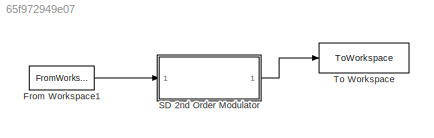
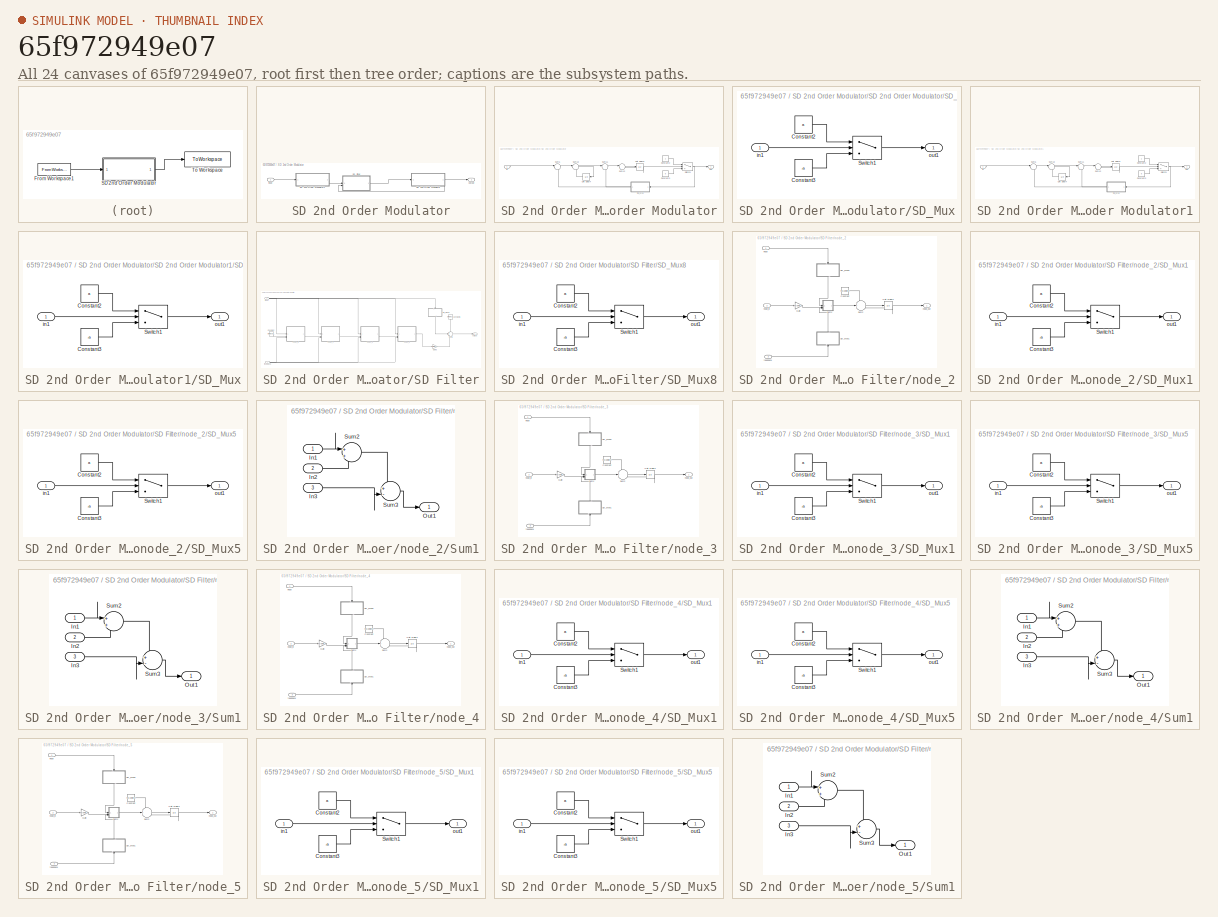
[diagram: thumbnail index - all 24 canvases of the model, root first then tree order]
MODEL slx_65f972949e07
KIND model
CONFIG AbsTol = auto
CONFIG EnableMultiTasking = off
CONFIG FixedStep = auto
CONFIG MaxStep = auto
CONFIG MinStep = auto
CONFIG RelTol = 1e-3
CONFIG SampleTimeConstraint = Unconstrained
CONFIG SolverName = VariableStepAuto
CONFIG StartTime = 0.0
CONFIG StopTime = 10.0
BLOCK [FromWorkspace] From Workspace1
  Interpolate = off
  OutputAfterFinalValue = Holding final value
  SampleTime = ts
  VariableName = simin
BLOCK [SubSystem] SD 2nd Order Modulator
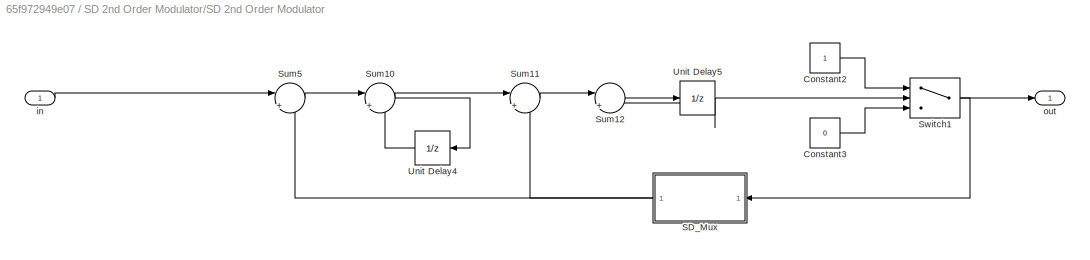
BLOCK [SubSystem] SD 2nd Order Modulator/SD 2nd Order Modulator
BLOCK [Constant] SD 2nd Order Modulator/SD 2nd Order Modulator/Constant2
  OutDataTypeStr = boolean
BLOCK [Constant] SD 2nd Order Modulator/SD 2nd Order Modulator/Constant3
  OutDataTypeStr = boolean
  Value = 0
BLOCK [SubSystem] SD 2nd Order Modulator/SD 2nd Order Modulator/SD_Mux
BLOCK [Constant] SD 2nd Order Modulator/SD 2nd Order Modulator/SD_Mux/Constant2
  Value = a
BLOCK [Constant] SD 2nd Order Modulator/SD 2nd Order Modulator/SD_Mux/Constant3
  Value = -a
BLOCK [Switch] SD 2nd Order Modulator/SD 2nd Order Modulator/SD_Mux/Switch1
  Criteria = u2 > Threshold
  InputSameDT = off
  SaturateOnIntegerOverflow = off
BLOCK [Inport] SD 2nd Order Modulator/SD 2nd Order Modulator/SD_Mux/in1
  OutDataTypeStr = boolean
  PortDimensions = 1
  SampleTime = 8.85770975056689e-08
BLOCK [Outport] SD 2nd Order Modulator/SD 2nd Order Modulator/SD_Mux/out1
  SampleTime = 8.85770975056689e-08
BLOCK [Sum] SD 2nd Order Modulator/SD 2nd Order Modulator/Sum10
  AccumDataTypeStr = Inherit: Same as first input
  Inputs = ||+|+
  OutDataTypeStr = Inherit: Same as accumulator
BLOCK [Sum] SD 2nd Order Modulator/SD 2nd Order Modulator/Sum11
  AccumDataTypeStr = Inherit: Same as first input
  Inputs = ||+|-
  OutDataTypeStr = Inherit: Same as accumulator
BLOCK [Sum] SD 2nd Order Modulator/SD 2nd Order Modulator/Sum12
  AccumDataTypeStr = Inherit: Same as first input
  Inputs = ||+|+
  OutDataTypeStr = Inherit: Same as accumulator
BLOCK [Sum] SD 2nd Order Modulator/SD 2nd Order Modulator/Sum5
  AccumDataTypeStr = Inherit: Same as first input
  Inputs = ||+|-
  OutDataTypeStr = Inherit: Same as accumulator
BLOCK [Switch] SD 2nd Order Modulator/SD 2nd Order Modulator/Switch1
  Criteria = u2 > Threshold
  InputSameDT = off
  SaturateOnIntegerOverflow = off
BLOCK [UnitDelay] SD 2nd Order Modulator/SD 2nd Order Modulator/Unit Delay4
  HasFrameUpgradeWarning = on
  SampleTime = -1
BLOCK [UnitDelay] SD 2nd Order Modulator/SD 2nd Order Modulator/Unit Delay5
  HasFrameUpgradeWarning = on
  SampleTime = -1
BLOCK [Inport] SD 2nd Order Modulator/SD 2nd Order Modulator/in
  OutDataTypeStr = fixdt(1, 47, 22)
  PortDimensions = 1
  SampleTime = 8.85770975056689e-08
BLOCK [Outport] SD 2nd Order Modulator/SD 2nd Order Modulator/out
  SampleTime = 8.85770975056689e-08
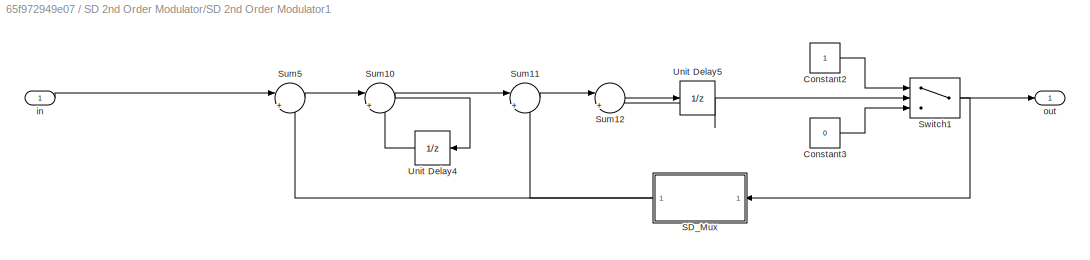
BLOCK [SubSystem] SD 2nd Order Modulator/SD 2nd Order Modulator1
BLOCK [Constant] SD 2nd Order Modulator/SD 2nd Order Modulator1/Constant2
  OutDataTypeStr = boolean
BLOCK [Constant] SD 2nd Order Modulator/SD 2nd Order Modulator1/Constant3
  OutDataTypeStr = boolean
  Value = 0
BLOCK [SubSystem] SD 2nd Order Modulator/SD 2nd Order Modulator1/SD_Mux
BLOCK [Constant] SD 2nd Order Modulator/SD 2nd Order Modulator1/SD_Mux/Constant2
  Value = a
BLOCK [Constant] SD 2nd Order Modulator/SD 2nd Order Modulator1/SD_Mux/Constant3
  Value = -a
BLOCK [Switch] SD 2nd Order Modulator/SD 2nd Order Modulator1/SD_Mux/Switch1
  Criteria = u2 > Threshold
  InputSameDT = off
  SaturateOnIntegerOverflow = off
BLOCK [Inport] SD 2nd Order Modulator/SD 2nd Order Modulator1/SD_Mux/in1
  OutDataTypeStr = boolean
  PortDimensions = 1
  SampleTime = 8.85770975056689e-08
BLOCK [Outport] SD 2nd Order Modulator/SD 2nd Order Modulator1/SD_Mux/out1
  SampleTime = 8.85770975056689e-08
BLOCK [Sum] SD 2nd Order Modulator/SD 2nd Order Modulator1/Sum10
  AccumDataTypeStr = Inherit: Same as first input
  Inputs = ||+|+
  OutDataTypeStr = Inherit: Same as accumulator
BLOCK [Sum] SD 2nd Order Modulator/SD 2nd Order Modulator1/Sum11
  AccumDataTypeStr = Inherit: Same as first input
  Inputs = ||+|-
  OutDataTypeStr = Inherit: Same as accumulator
BLOCK [Sum] SD 2nd Order Modulator/SD 2nd Order Modulator1/Sum12
  AccumDataTypeStr = Inherit: Same as first input
  Inputs = ||+|+
  OutDataTypeStr = Inherit: Same as accumulator
BLOCK [Sum] SD 2nd Order Modulator/SD 2nd Order Modulator1/Sum5
  AccumDataTypeStr = Inherit: Same as first input
  Inputs = ||+|-
  OutDataTypeStr = Inherit: Same as accumulator
BLOCK [Switch] SD 2nd Order Modulator/SD 2nd Order Modulator1/Switch1
  Criteria = u2 > Threshold
  InputSameDT = off
  SaturateOnIntegerOverflow = off
BLOCK [UnitDelay] SD 2nd Order Modulator/SD 2nd Order Modulator1/Unit Delay4
  HasFrameUpgradeWarning = on
  SampleTime = -1
BLOCK [UnitDelay] SD 2nd Order Modulator/SD 2nd Order Modulator1/Unit Delay5
  HasFrameUpgradeWarning = on
  SampleTime = -1
BLOCK [Inport] SD 2nd Order Modulator/SD 2nd Order Modulator1/in
  OutDataTypeStr = fixdt(1, 16, 7)
  PortDimensions = 1
  SampleTime = 8.85770975056689e-08
BLOCK [Outport] SD 2nd Order Modulator/SD 2nd Order Modulator1/out
  SampleTime = 8.85770975056689e-08
BLOCK [SubSystem] SD 2nd Order Modulator/SD Filter
BLOCK [Constant] SD 2nd Order Modulator/SD Filter/Constant
  Value = bitwidths(5).k_ts
BLOCK [Constant] SD 2nd Order Modulator/SD Filter/Constant1
  NameLocation = left
  Value = bitwidths(1).accum
BLOCK [Gain] SD 2nd Order Modulator/SD Filter/Gain3
  Gain = bitwidths(1).k_ts
  RndMeth = Round
BLOCK [SubSystem] SD 2nd Order Modulator/SD Filter/SD_Mux8
  NameLocation = right
BLOCK [Constant] SD 2nd Order Modulator/SD Filter/SD_Mux8/Constant2
  Value = a
BLOCK [Constant] SD 2nd Order Modulator/SD Filter/SD_Mux8/Constant3
  Value = -a
BLOCK [Switch] SD 2nd Order Modulator/SD Filter/SD_Mux8/Switch1
  Criteria = u2 > Threshold
  InputSameDT = off
  SaturateOnIntegerOverflow = off
BLOCK [Inport] SD 2nd Order Modulator/SD Filter/SD_Mux8/in1
  OutDataTypeStr = boolean
  PortDimensions = 1
  SampleTime = 8.85770975056689e-08
BLOCK [Outport] SD 2nd Order Modulator/SD Filter/SD_Mux8/out1
  SampleTime = 8.85770975056689e-08
BLOCK [Sum] SD 2nd Order Modulator/SD Filter/Sum8
  AccumDataTypeStr = Inherit: Same as first input
  Inputs = +++
  OutDataTypeStr = Inherit: Same as accumulator
BLOCK [Inport] SD 2nd Order Modulator/SD Filter/feedback
  OutDataTypeStr = boolean
  Port = 2
  PortDimensions = 1
  SampleTime = 8.85770975056689e-08
BLOCK [Inport] SD 2nd Order Modulator/SD Filter/input
  OutDataTypeStr = boolean
  PortDimensions = 1
  SampleTime = 8.85770975056689e-08
BLOCK [SubSystem] SD 2nd Order Modulator/SD Filter/node_2
BLOCK [Constant] SD 2nd Order Modulator/SD Filter/node_2/Constant
  Value = Parameter4
BLOCK [Gain] SD 2nd Order Modulator/SD Filter/node_2/Gain
  Gain = Parameter3
  RndMeth = Round
BLOCK [SubSystem] SD 2nd Order Modulator/SD Filter/node_2/SD_Mux1
  NameLocation = right
BLOCK [Constant] SD 2nd Order Modulator/SD Filter/node_2/SD_Mux1/Constant2
  Value = a
BLOCK [Constant] SD 2nd Order Modulator/SD Filter/node_2/SD_Mux1/Constant3
  Value = -a
BLOCK [Switch] SD 2nd Order Modulator/SD Filter/node_2/SD_Mux1/Switch1
  Criteria = u2 > Threshold
  InputSameDT = off
  SaturateOnIntegerOverflow = off
BLOCK [Inport] SD 2nd Order Modulator/SD Filter/node_2/SD_Mux1/in1
  OutDataTypeStr = boolean
  PortDimensions = 1
  SampleTime = 8.85770975056689e-08
BLOCK [Outport] SD 2nd Order Modulator/SD Filter/node_2/SD_Mux1/out1
  SampleTime = 8.85770975056689e-08
BLOCK [SubSystem] SD 2nd Order Modulator/SD Filter/node_2/SD_Mux5
  NameLocation = right
BLOCK [Constant] SD 2nd Order Modulator/SD Filter/node_2/SD_Mux5/Constant2
  Value = a
BLOCK [Constant] SD 2nd Order Modulator/SD Filter/node_2/SD_Mux5/Constant3
  Value = -a
BLOCK [Switch] SD 2nd Order Modulator/SD Filter/node_2/SD_Mux5/Switch1
  Criteria = u2 > Threshold
  InputSameDT = off
  SaturateOnIntegerOverflow = off
BLOCK [Inport] SD 2nd Order Modulator/SD Filter/node_2/SD_Mux5/in1
  OutDataTypeStr = boolean
  PortDimensions = 1
  SampleTime = 8.85770975056689e-08
BLOCK [Outport] SD 2nd Order Modulator/SD Filter/node_2/SD_Mux5/out1
  SampleTime = 8.85770975056689e-08
BLOCK [SubSystem] SD 2nd Order Modulator/SD Filter/node_2/Sum1
BLOCK [Inport] SD 2nd Order Modulator/SD Filter/node_2/Sum1/In1
  OutDataTypeStr = fixdt(1,21,8)
BLOCK [Inport] SD 2nd Order Modulator/SD Filter/node_2/Sum1/In2
  OutDataTypeStr = fixdt(1,66,50)
  Port = 2
BLOCK [Inport] SD 2nd Order Modulator/SD Filter/node_2/Sum1/In3
  OutDataTypeStr = fixdt(1,21,8)
  Port = 3
BLOCK [Outport] SD 2nd Order Modulator/SD Filter/node_2/Sum1/Out1
BLOCK [Sum] SD 2nd Order Modulator/SD Filter/node_2/Sum1/Sum2
  AccumDataTypeStr = fixdt(1,21,8)
  OutDataTypeStr = fixdt(1,21,8)
BLOCK [Sum] SD 2nd Order Modulator/SD Filter/node_2/Sum1/Sum3
  AccumDataTypeStr = fixdt(1,21,8)
  Inputs = +-
  OutDataTypeStr = fixdt(1,21,8)
BLOCK [Sum] SD 2nd Order Modulator/SD Filter/node_2/Sum2
  AccumDataTypeStr = Inherit: Same as first input
  Inputs = +++
  OutDataTypeStr = Inherit: Same as accumulator
BLOCK [UnitDelay] SD 2nd Order Modulator/SD Filter/node_2/Unit Delay1
  HasFrameUpgradeWarning = on
  SampleTime = -1
BLOCK [Inport] SD 2nd Order Modulator/SD Filter/node_2/feedback
  OutDataTypeStr = boolean
  Port = 3
  PortDimensions = 1
  SampleTime = 8.85770975056689e-08
BLOCK [Inport] SD 2nd Order Modulator/SD Filter/node_2/input
  OutDataTypeStr = boolean
  PortDimensions = 1
  SampleTime = 8.85770975056689e-08
BLOCK [Inport] SD 2nd Order Modulator/SD Filter/node_2/node_in
  OutDataTypeStr = fixdt(1, 33, 8)
  Port = 2
  PortDimensions = 1
  SampleTime = 8.85770975056689e-08
BLOCK [Outport] SD 2nd Order Modulator/SD Filter/node_2/node_out
  SampleTime = 8.85770975056689e-08
BLOCK [SubSystem] SD 2nd Order Modulator/SD Filter/node_3
BLOCK [Constant] SD 2nd Order Modulator/SD Filter/node_3/Constant
  Value = Parameter4
BLOCK [Gain] SD 2nd Order Modulator/SD Filter/node_3/Gain
  Gain = Parameter3
  RndMeth = Round
BLOCK [SubSystem] SD 2nd Order Modulator/SD Filter/node_3/SD_Mux1
  NameLocation = right
BLOCK [Constant] SD 2nd Order Modulator/SD Filter/node_3/SD_Mux1/Constant2
  Value = a
BLOCK [Constant] SD 2nd Order Modulator/SD Filter/node_3/SD_Mux1/Constant3
  Value = -a
BLOCK [Switch] SD 2nd Order Modulator/SD Filter/node_3/SD_Mux1/Switch1
  Criteria = u2 > Threshold
  InputSameDT = off
  SaturateOnIntegerOverflow = off
BLOCK [Inport] SD 2nd Order Modulator/SD Filter/node_3/SD_Mux1/in1
  OutDataTypeStr = boolean
  PortDimensions = 1
  SampleTime = 8.85770975056689e-08
BLOCK [Outport] SD 2nd Order Modulator/SD Filter/node_3/SD_Mux1/out1
  SampleTime = 8.85770975056689e-08
BLOCK [SubSystem] SD 2nd Order Modulator/SD Filter/node_3/SD_Mux5
  NameLocation = right
BLOCK [Constant] SD 2nd Order Modulator/SD Filter/node_3/SD_Mux5/Constant2
  Value = a
BLOCK [Constant] SD 2nd Order Modulator/SD Filter/node_3/SD_Mux5/Constant3
  Value = -a
BLOCK [Switch] SD 2nd Order Modulator/SD Filter/node_3/SD_Mux5/Switch1
  Criteria = u2 > Threshold
  InputSameDT = off
  SaturateOnIntegerOverflow = off
BLOCK [Inport] SD 2nd Order Modulator/SD Filter/node_3/SD_Mux5/in1
  OutDataTypeStr = boolean
  PortDimensions = 1
  SampleTime = 8.85770975056689e-08
BLOCK [Outport] SD 2nd Order Modulator/SD Filter/node_3/SD_Mux5/out1
  SampleTime = 8.85770975056689e-08
BLOCK [SubSystem] SD 2nd Order Modulator/SD Filter/node_3/Sum1
BLOCK [Inport] SD 2nd Order Modulator/SD Filter/node_3/Sum1/In1
  OutDataTypeStr = fixdt(1,25,8)
BLOCK [Inport] SD 2nd Order Modulator/SD Filter/node_3/Sum1/In2
  OutDataTypeStr = fixdt(1,66,50)
  Port = 2
BLOCK [Inport] SD 2nd Order Modulator/SD Filter/node_3/Sum1/In3
  OutDataTypeStr = fixdt(1,25,8)
  Port = 3
BLOCK [Outport] SD 2nd Order Modulator/SD Filter/node_3/Sum1/Out1
BLOCK [Sum] SD 2nd Order Modulator/SD Filter/node_3/Sum1/Sum2
  AccumDataTypeStr = fixdt(1,25,8)
  OutDataTypeStr = fixdt(1,25,8)
BLOCK [Sum] SD 2nd Order Modulator/SD Filter/node_3/Sum1/Sum3
  AccumDataTypeStr = fixdt(1,25,8)
  Inputs = +-
  OutDataTypeStr = fixdt(1,25,8)
BLOCK [Sum] SD 2nd Order Modulator/SD Filter/node_3/Sum2
  AccumDataTypeStr = Inherit: Same as first input
  Inputs = +++
  OutDataTypeStr = Inherit: Same as accumulator
BLOCK [UnitDelay] SD 2nd Order Modulator/SD Filter/node_3/Unit Delay1
  HasFrameUpgradeWarning = on
  SampleTime = -1
BLOCK [Inport] SD 2nd Order Modulator/SD Filter/node_3/feedback
  OutDataTypeStr = boolean
  Port = 3
  PortDimensions = 1
  SampleTime = 8.85770975056689e-08
BLOCK [Inport] SD 2nd Order Modulator/SD Filter/node_3/input
  OutDataTypeStr = boolean
  PortDimensions = 1
  SampleTime = 8.85770975056689e-08
BLOCK [Inport] SD 2nd Order Modulator/SD Filter/node_3/node_in
  OutDataTypeStr = fixdt(1, 33, 8)
  Port = 2
  PortDimensions = 1
  SampleTime = 8.85770975056689e-08
BLOCK [Outport] SD 2nd Order Modulator/SD Filter/node_3/node_out
  SampleTime = 8.85770975056689e-08
BLOCK [SubSystem] SD 2nd Order Modulator/SD Filter/node_4
BLOCK [Constant] SD 2nd Order Modulator/SD Filter/node_4/Constant
  Value = Parameter4
BLOCK [Gain] SD 2nd Order Modulator/SD Filter/node_4/Gain
  Gain = Parameter3
  RndMeth = Round
BLOCK [SubSystem] SD 2nd Order Modulator/SD Filter/node_4/SD_Mux1
  NameLocation = right
BLOCK [Constant] SD 2nd Order Modulator/SD Filter/node_4/SD_Mux1/Constant2
  Value = a
BLOCK [Constant] SD 2nd Order Modulator/SD Filter/node_4/SD_Mux1/Constant3
  Value = -a
BLOCK [Switch] SD 2nd Order Modulator/SD Filter/node_4/SD_Mux1/Switch1
  Criteria = u2 > Threshold
  InputSameDT = off
  SaturateOnIntegerOverflow = off
BLOCK [Inport] SD 2nd Order Modulator/SD Filter/node_4/SD_Mux1/in1
  OutDataTypeStr = boolean
  PortDimensions = 1
  SampleTime = 8.85770975056689e-08
BLOCK [Outport] SD 2nd Order Modulator/SD Filter/node_4/SD_Mux1/out1
  SampleTime = 8.85770975056689e-08
BLOCK [SubSystem] SD 2nd Order Modulator/SD Filter/node_4/SD_Mux5
  NameLocation = right
BLOCK [Constant] SD 2nd Order Modulator/SD Filter/node_4/SD_Mux5/Constant2
  Value = a
BLOCK [Constant] SD 2nd Order Modulator/SD Filter/node_4/SD_Mux5/Constant3
  Value = -a
BLOCK [Switch] SD 2nd Order Modulator/SD Filter/node_4/SD_Mux5/Switch1
  Criteria = u2 > Threshold
  InputSameDT = off
  SaturateOnIntegerOverflow = off
BLOCK [Inport] SD 2nd Order Modulator/SD Filter/node_4/SD_Mux5/in1
  OutDataTypeStr = boolean
  PortDimensions = 1
  SampleTime = 8.85770975056689e-08
BLOCK [Outport] SD 2nd Order Modulator/SD Filter/node_4/SD_Mux5/out1
  SampleTime = 8.85770975056689e-08
BLOCK [SubSystem] SD 2nd Order Modulator/SD Filter/node_4/Sum1
BLOCK [Inport] SD 2nd Order Modulator/SD Filter/node_4/Sum1/In1
  OutDataTypeStr = fixdt(1,21,8)
BLOCK [Inport] SD 2nd Order Modulator/SD Filter/node_4/Sum1/In2
  OutDataTypeStr = fixdt(1,50,34)
  Port = 2
BLOCK [Inport] SD 2nd Order Modulator/SD Filter/node_4/Sum1/In3
  OutDataTypeStr = fixdt(1,21,8)
  Port = 3
BLOCK [Outport] SD 2nd Order Modulator/SD Filter/node_4/Sum1/Out1
BLOCK [Sum] SD 2nd Order Modulator/SD Filter/node_4/Sum1/Sum2
  AccumDataTypeStr = fixdt(1,21,8)
  OutDataTypeStr = fixdt(1,21,8)
BLOCK [Sum] SD 2nd Order Modulator/SD Filter/node_4/Sum1/Sum3
  AccumDataTypeStr = fixdt(1,21,8)
  Inputs = +-
  OutDataTypeStr = fixdt(1,21,8)
BLOCK [Sum] SD 2nd Order Modulator/SD Filter/node_4/Sum2
  AccumDataTypeStr = Inherit: Same as first input
  Inputs = +++
  OutDataTypeStr = Inherit: Same as accumulator
BLOCK [UnitDelay] SD 2nd Order Modulator/SD Filter/node_4/Unit Delay1
  HasFrameUpgradeWarning = on
  SampleTime = -1
BLOCK [Inport] SD 2nd Order Modulator/SD Filter/node_4/feedback
  OutDataTypeStr = boolean
  Port = 3
  PortDimensions = 1
  SampleTime = 8.85770975056689e-08
BLOCK [Inport] SD 2nd Order Modulator/SD Filter/node_4/input
  OutDataTypeStr = boolean
  PortDimensions = 1
  SampleTime = 8.85770975056689e-08
BLOCK [Inport] SD 2nd Order Modulator/SD Filter/node_4/node_in
  OutDataTypeStr = fixdt(1, 25, 0)
  Port = 2
  PortDimensions = 1
  SampleTime = 8.85770975056689e-08
BLOCK [Outport] SD 2nd Order Modulator/SD Filter/node_4/node_out
  SampleTime = 8.85770975056689e-08
BLOCK [SubSystem] SD 2nd Order Modulator/SD Filter/node_5
BLOCK [Constant] SD 2nd Order Modulator/SD Filter/node_5/Constant
  Value = Parameter4
BLOCK [Gain] SD 2nd Order Modulator/SD Filter/node_5/Gain
  Gain = Parameter3
  RndMeth = Round
BLOCK [SubSystem] SD 2nd Order Modulator/SD Filter/node_5/SD_Mux1
  NameLocation = right
BLOCK [Constant] SD 2nd Order Modulator/SD Filter/node_5/SD_Mux1/Constant2
  Value = a
BLOCK [Constant] SD 2nd Order Modulator/SD Filter/node_5/SD_Mux1/Constant3
  Value = -a
BLOCK [Switch] SD 2nd Order Modulator/SD Filter/node_5/SD_Mux1/Switch1
  Criteria = u2 > Threshold
  InputSameDT = off
  SaturateOnIntegerOverflow = off
BLOCK [Inport] SD 2nd Order Modulator/SD Filter/node_5/SD_Mux1/in1
  OutDataTypeStr = boolean
  PortDimensions = 1
  SampleTime = 8.85770975056689e-08
BLOCK [Outport] SD 2nd Order Modulator/SD Filter/node_5/SD_Mux1/out1
  SampleTime = 8.85770975056689e-08
BLOCK [SubSystem] SD 2nd Order Modulator/SD Filter/node_5/SD_Mux5
  NameLocation = right
BLOCK [Constant] SD 2nd Order Modulator/SD Filter/node_5/SD_Mux5/Constant2
  Value = a
BLOCK [Constant] SD 2nd Order Modulator/SD Filter/node_5/SD_Mux5/Constant3
  Value = -a
BLOCK [Switch] SD 2nd Order Modulator/SD Filter/node_5/SD_Mux5/Switch1
  Criteria = u2 > Threshold
  InputSameDT = off
  SaturateOnIntegerOverflow = off
BLOCK [Inport] SD 2nd Order Modulator/SD Filter/node_5/SD_Mux5/in1
  OutDataTypeStr = boolean
  PortDimensions = 1
  SampleTime = 8.85770975056689e-08
BLOCK [Outport] SD 2nd Order Modulator/SD Filter/node_5/SD_Mux5/out1
  SampleTime = 8.85770975056689e-08
BLOCK [SubSystem] SD 2nd Order Modulator/SD Filter/node_5/Sum1
BLOCK [Inport] SD 2nd Order Modulator/SD Filter/node_5/Sum1/In1
  OutDataTypeStr = fixdt(1,16,0)
BLOCK [Inport] SD 2nd Order Modulator/SD Filter/node_5/Sum1/In2
  OutDataTypeStr = fixdt(1,8,1001)
  Port = 2
BLOCK [Inport] SD 2nd Order Modulator/SD Filter/node_5/Sum1/In3
  OutDataTypeStr = fixdt(1,16,0)
  Port = 3
BLOCK [Outport] SD 2nd Order Modulator/SD Filter/node_5/Sum1/Out1
BLOCK [Sum] SD 2nd Order Modulator/SD Filter/node_5/Sum1/Sum2
  AccumDataTypeStr = fixdt(1,16,0)
  OutDataTypeStr = fixdt(1,16,0)
BLOCK [Sum] SD 2nd Order Modulator/SD Filter/node_5/Sum1/Sum3
  AccumDataTypeStr = fixdt(1,16,0)
  Inputs = +-
  OutDataTypeStr = fixdt(1,16,0)
BLOCK [Sum] SD 2nd Order Modulator/SD Filter/node_5/Sum2
  AccumDataTypeStr = Inherit: Same as first input
  Inputs = +++
  OutDataTypeStr = Inherit: Same as accumulator
BLOCK [UnitDelay] SD 2nd Order Modulator/SD Filter/node_5/Unit Delay1
  HasFrameUpgradeWarning = on
  SampleTime = -1
BLOCK [Inport] SD 2nd Order Modulator/SD Filter/node_5/feedback
  OutDataTypeStr = boolean
  Port = 3
  PortDimensions = 1
  SampleTime = 8.85770975056689e-08
BLOCK [Inport] SD 2nd Order Modulator/SD Filter/node_5/input
  OutDataTypeStr = boolean
  PortDimensions = 1
  SampleTime = 8.85770975056689e-08
BLOCK [Inport] SD 2nd Order Modulator/SD Filter/node_5/node_in
  OutDataTypeStr = fixdt(1, 2, 1)
  Port = 2
  PortDimensions = 1
BLOCK [Outport] SD 2nd Order Modulator/SD Filter/node_5/node_out
  SampleTime = 8.85770975056689e-08
BLOCK [Outport] SD 2nd Order Modulator/SD Filter/output
  SampleTime = 8.85770975056689e-08
BLOCK [Inport] SD 2nd Order Modulator/input
  OutDataTypeStr = fixdt(1, 16, 7)
  PortDimensions = 1
  SampleTime = 8.85770975056689e-08
BLOCK [Outport] SD 2nd Order Modulator/output
  SampleTime = 8.85770975056689e-08
BLOCK [ToWorkspace] To Workspace
  MaxDataPoints = inf
  SampleTime = -1
  SaveFormat = Structure With Time
  VariableName = filter_output
LINE From Workspace1:1 -> SD 2nd Order Modulator:1
LINE SD 2nd Order Modulator/SD 2nd Order Modulator/Constant2:1 -> SD 2nd Order Modulator/SD 2nd Order Modulator/Switch1:1
LINE SD 2nd Order Modulator/SD 2nd Order Modulator/Constant3:1 -> SD 2nd Order Modulator/SD 2nd Order Modulator/Switch1:3
LINE SD 2nd Order Modulator/SD 2nd Order Modulator/SD_Mux/Constant2:1 -> SD 2nd Order Modulator/SD 2nd Order Modulator/SD_Mux/Switch1:1
LINE SD 2nd Order Modulator/SD 2nd Order Modulator/SD_Mux/Constant3:1 -> SD 2nd Order Modulator/SD 2nd Order Modulator/SD_Mux/Switch1:3
LINE SD 2nd Order Modulator/SD 2nd Order Modulator/SD_Mux/Switch1:1 -> SD 2nd Order Modulator/SD 2nd Order Modulator/SD_Mux/out1:1
LINE SD 2nd Order Modulator/SD 2nd Order Modulator/SD_Mux/in1:1 -> SD 2nd Order Modulator/SD 2nd Order Modulator/SD_Mux/Switch1:2
NET SD 2nd Order Modulator/SD 2nd Order Modulator/SD_Mux:1 -> SD 2nd Order Modulator/SD 2nd Order Modulator/Sum11:2, SD 2nd Order Modulator/SD 2nd Order Modulator/Sum5:2
NET SD 2nd Order Modulator/SD 2nd Order Modulator/Sum10:1 -> SD 2nd Order Modulator/SD 2nd Order Modulator/Sum11:1, SD 2nd Order Modulator/SD 2nd Order Modulator/Unit Delay4:1
LINE SD 2nd Order Modulator/SD 2nd Order Modulator/Sum11:1 -> SD 2nd Order Modulator/SD 2nd Order Modulator/Sum12:1
LINE SD 2nd Order Modulator/SD 2nd Order Modulator/Sum12:1 -> SD 2nd Order Modulator/SD 2nd Order Modulator/Unit Delay5:1
LINE SD 2nd Order Modulator/SD 2nd Order Modulator/Sum5:1 -> SD 2nd Order Modulator/SD 2nd Order Modulator/Sum10:1
NET SD 2nd Order Modulator/SD 2nd Order Modulator/Switch1:1 -> SD 2nd Order Modulator/SD 2nd Order Modulator/SD_Mux:1, SD 2nd Order Modulator/SD 2nd Order Modulator/out:1
LINE SD 2nd Order Modulator/SD 2nd Order Modulator/Unit Delay4:1 -> SD 2nd Order Modulator/SD 2nd Order Modulator/Sum10:2
NET SD 2nd Order Modulator/SD 2nd Order Modulator/Unit Delay5:1 -> SD 2nd Order Modulator/SD 2nd Order Modulator/Sum12:2, SD 2nd Order Modulator/SD 2nd Order Modulator/Switch1:2
LINE SD 2nd Order Modulator/SD 2nd Order Modulator/in:1 -> SD 2nd Order Modulator/SD 2nd Order Modulator/Sum5:1
LINE SD 2nd Order Modulator/SD 2nd Order Modulator1/Constant2:1 -> SD 2nd Order Modulator/SD 2nd Order Modulator1/Switch1:1
LINE SD 2nd Order Modulator/SD 2nd Order Modulator1/Constant3:1 -> SD 2nd Order Modulator/SD 2nd Order Modulator1/Switch1:3
LINE SD 2nd Order Modulator/SD 2nd Order Modulator1/SD_Mux/Constant2:1 -> SD 2nd Order Modulator/SD 2nd Order Modulator1/SD_Mux/Switch1:1
LINE SD 2nd Order Modulator/SD 2nd Order Modulator1/SD_Mux/Constant3:1 -> SD 2nd Order Modulator/SD 2nd Order Modulator1/SD_Mux/Switch1:3
LINE SD 2nd Order Modulator/SD 2nd Order Modulator1/SD_Mux/Switch1:1 -> SD 2nd Order Modulator/SD 2nd Order Modulator1/SD_Mux/out1:1
LINE SD 2nd Order Modulator/SD 2nd Order Modulator1/SD_Mux/in1:1 -> SD 2nd Order Modulator/SD 2nd Order Modulator1/SD_Mux/Switch1:2
NET SD 2nd Order Modulator/SD 2nd Order Modulator1/SD_Mux:1 -> SD 2nd Order Modulator/SD 2nd Order Modulator1/Sum11:2, SD 2nd Order Modulator/SD 2nd Order Modulator1/Sum5:2
NET SD 2nd Order Modulator/SD 2nd Order Modulator1/Sum10:1 -> SD 2nd Order Modulator/SD 2nd Order Modulator1/Sum11:1, SD 2nd Order Modulator/SD 2nd Order Modulator1/Unit Delay4:1
LINE SD 2nd Order Modulator/SD 2nd Order Modulator1/Sum11:1 -> SD 2nd Order Modulator/SD 2nd Order Modulator1/Sum12:1
LINE SD 2nd Order Modulator/SD 2nd Order Modulator1/Sum12:1 -> SD 2nd Order Modulator/SD 2nd Order Modulator1/Unit Delay5:1
LINE SD 2nd Order Modulator/SD 2nd Order Modulator1/Sum5:1 -> SD 2nd Order Modulator/SD 2nd Order Modulator1/Sum10:1
NET SD 2nd Order Modulator/SD 2nd Order Modulator1/Switch1:1 -> SD 2nd Order Modulator/SD 2nd Order Modulator1/SD_Mux:1, SD 2nd Order Modulator/SD 2nd Order Modulator1/out:1
LINE SD 2nd Order Modulator/SD 2nd Order Modulator1/Unit Delay4:1 -> SD 2nd Order Modulator/SD 2nd Order Modulator1/Sum10:2
NET SD 2nd Order Modulator/SD 2nd Order Modulator1/Unit Delay5:1 -> SD 2nd Order Modulator/SD 2nd Order Modulator1/Sum12:2, SD 2nd Order Modulator/SD 2nd Order Modulator1/Switch1:2
LINE SD 2nd Order Modulator/SD 2nd Order Modulator1/in:1 -> SD 2nd Order Modulator/SD 2nd Order Modulator1/Sum5:1
LINE SD 2nd Order Modulator/SD 2nd Order Modulator1:1 -> SD 2nd Order Modulator/SD Filter:1
NET SD 2nd Order Modulator/SD 2nd Order Modulator:1 -> SD 2nd Order Modulator/SD Filter:2, SD 2nd Order Modulator/output:1
LINE SD 2nd Order Modulator/SD Filter/Constant1:1 -> SD 2nd Order Modulator/SD Filter/Sum8:1
LINE SD 2nd Order Modulator/SD Filter/Constant:1 -> SD 2nd Order Modulator/SD Filter/node_5:2
LINE SD 2nd Order Modulator/SD Filter/Gain3:1 -> SD 2nd Order Modulator/SD Filter/Sum8:3
LINE SD 2nd Order Modulator/SD Filter/SD_Mux8/Constant2:1 -> SD 2nd Order Modulator/SD Filter/SD_Mux8/Switch1:1
LINE SD 2nd Order Modulator/SD Filter/SD_Mux8/Constant3:1 -> SD 2nd Order Modulator/SD Filter/SD_Mux8/Switch1:3
LINE SD 2nd Order Modulator/SD Filter/SD_Mux8/Switch1:1 -> SD 2nd Order Modulator/SD Filter/SD_Mux8/out1:1
LINE SD 2nd Order Modulator/SD Filter/SD_Mux8/in1:1 -> SD 2nd Order Modulator/SD Filter/SD_Mux8/Switch1:2
LINE SD 2nd Order Modulator/SD Filter/SD_Mux8:1 -> SD 2nd Order Modulator/SD Filter/Sum8:2
LINE SD 2nd Order Modulator/SD Filter/Sum8:1 -> SD 2nd Order Modulator/SD Filter/output:1
NET SD 2nd Order Modulator/SD Filter/feedback:1 -> SD 2nd Order Modulator/SD Filter/node_2:3, SD 2nd Order Modulator/SD Filter/node_3:3, SD 2nd Order Modulator/SD Filter/node_4:3, SD 2nd Order Modulator/SD Filter/node_5:3
NET SD 2nd Order Modulator/SD Filter/input:1 -> SD 2nd Order Modulator/SD Filter/SD_Mux8:1, SD 2nd Order Modulator/SD Filter/node_2:1, SD 2nd Order Modulator/SD Filter/node_3:1, SD 2nd Order Modulator/SD Filter/node_4:1, SD 2nd Order Modulator/SD Filter/node_5:1
LINE SD 2nd Order Modulator/SD Filter/node_2/Constant:1 -> SD 2nd Order Modulator/SD Filter/node_2/Sum2:1
LINE SD 2nd Order Modulator/SD Filter/node_2/Gain:1 -> SD 2nd Order Modulator/SD Filter/node_2/Sum1:2
LINE SD 2nd Order Modulator/SD Filter/node_2/SD_Mux1/Constant2:1 -> SD 2nd Order Modulator/SD Filter/node_2/SD_Mux1/Switch1:1
LINE SD 2nd Order Modulator/SD Filter/node_2/SD_Mux1/Constant3:1 -> SD 2nd Order Modulator/SD Filter/node_2/SD_Mux1/Switch1:3
LINE SD 2nd Order Modulator/SD Filter/node_2/SD_Mux1/Switch1:1 -> SD 2nd Order Modulator/SD Filter/node_2/SD_Mux1/out1:1
LINE SD 2nd Order Modulator/SD Filter/node_2/SD_Mux1/in1:1 -> SD 2nd Order Modulator/SD Filter/node_2/SD_Mux1/Switch1:2
LINE SD 2nd Order Modulator/SD Filter/node_2/SD_Mux1:1 -> SD 2nd Order Modulator/SD Filter/node_2/Sum1:3
LINE SD 2nd Order Modulator/SD Filter/node_2/SD_Mux5/Constant2:1 -> SD 2nd Order Modulator/SD Filter/node_2/SD_Mux5/Switch1:1
LINE SD 2nd Order Modulator/SD Filter/node_2/SD_Mux5/Constant3:1 -> SD 2nd Order Modulator/SD Filter/node_2/SD_Mux5/Switch1:3
LINE SD 2nd Order Modulator/SD Filter/node_2/SD_Mux5/Switch1:1 -> SD 2nd Order Modulator/SD Filter/node_2/SD_Mux5/out1:1
LINE SD 2nd Order Modulator/SD Filter/node_2/SD_Mux5/in1:1 -> SD 2nd Order Modulator/SD Filter/node_2/SD_Mux5/Switch1:2
LINE SD 2nd Order Modulator/SD Filter/node_2/SD_Mux5:1 -> SD 2nd Order Modulator/SD Filter/node_2/Sum1:1
LINE SD 2nd Order Modulator/SD Filter/node_2/Sum1/In1:1 -> SD 2nd Order Modulator/SD Filter/node_2/Sum1/Sum2:1
LINE SD 2nd Order Modulator/SD Filter/node_2/Sum1/In2:1 -> SD 2nd Order Modulator/SD Filter/node_2/Sum1/Sum2:2
LINE SD 2nd Order Modulator/SD Filter/node_2/Sum1/In3:1 -> SD 2nd Order Modulator/SD Filter/node_2/Sum1/Sum3:2
LINE SD 2nd Order Modulator/SD Filter/node_2/Sum1/Sum2:1 -> SD 2nd Order Modulator/SD Filter/node_2/Sum1/Sum3:1
LINE SD 2nd Order Modulator/SD Filter/node_2/Sum1/Sum3:1 -> SD 2nd Order Modulator/SD Filter/node_2/Sum1/Out1:1
LINE SD 2nd Order Modulator/SD Filter/node_2/Sum1:1 -> SD 2nd Order Modulator/SD Filter/node_2/Sum2:2
LINE SD 2nd Order Modulator/SD Filter/node_2/Sum2:1 -> SD 2nd Order Modulator/SD Filter/node_2/Unit Delay1:1
NET SD 2nd Order Modulator/SD Filter/node_2/Unit Delay1:1 -> SD 2nd Order Modulator/SD Filter/node_2/Sum2:3, SD 2nd Order Modulator/SD Filter/node_2/node_out:1
LINE SD 2nd Order Modulator/SD Filter/node_2/feedback:1 -> SD 2nd Order Modulator/SD Filter/node_2/SD_Mux1:1
LINE SD 2nd Order Modulator/SD Filter/node_2/input:1 -> SD 2nd Order Modulator/SD Filter/node_2/SD_Mux5:1
LINE SD 2nd Order Modulator/SD Filter/node_2/node_in:1 -> SD 2nd Order Modulator/SD Filter/node_2/Gain:1
LINE SD 2nd Order Modulator/SD Filter/node_2:1 -> SD 2nd Order Modulator/SD Filter/Gain3:1
LINE SD 2nd Order Modulator/SD Filter/node_3/Constant:1 -> SD 2nd Order Modulator/SD Filter/node_3/Sum2:1
LINE SD 2nd Order Modulator/SD Filter/node_3/Gain:1 -> SD 2nd Order Modulator/SD Filter/node_3/Sum1:2
LINE SD 2nd Order Modulator/SD Filter/node_3/SD_Mux1/Constant2:1 -> SD 2nd Order Modulator/SD Filter/node_3/SD_Mux1/Switch1:1
LINE SD 2nd Order Modulator/SD Filter/node_3/SD_Mux1/Constant3:1 -> SD 2nd Order Modulator/SD Filter/node_3/SD_Mux1/Switch1:3
LINE SD 2nd Order Modulator/SD Filter/node_3/SD_Mux1/Switch1:1 -> SD 2nd Order Modulator/SD Filter/node_3/SD_Mux1/out1:1
LINE SD 2nd Order Modulator/SD Filter/node_3/SD_Mux1/in1:1 -> SD 2nd Order Modulator/SD Filter/node_3/SD_Mux1/Switch1:2
LINE SD 2nd Order Modulator/SD Filter/node_3/SD_Mux1:1 -> SD 2nd Order Modulator/SD Filter/node_3/Sum1:3
LINE SD 2nd Order Modulator/SD Filter/node_3/SD_Mux5/Constant2:1 -> SD 2nd Order Modulator/SD Filter/node_3/SD_Mux5/Switch1:1
LINE SD 2nd Order Modulator/SD Filter/node_3/SD_Mux5/Constant3:1 -> SD 2nd Order Modulator/SD Filter/node_3/SD_Mux5/Switch1:3
LINE SD 2nd Order Modulator/SD Filter/node_3/SD_Mux5/Switch1:1 -> SD 2nd Order Modulator/SD Filter/node_3/SD_Mux5/out1:1
LINE SD 2nd Order Modulator/SD Filter/node_3/SD_Mux5/in1:1 -> SD 2nd Order Modulator/SD Filter/node_3/SD_Mux5/Switch1:2
LINE SD 2nd Order Modulator/SD Filter/node_3/SD_Mux5:1 -> SD 2nd Order Modulator/SD Filter/node_3/Sum1:1
LINE SD 2nd Order Modulator/SD Filter/node_3/Sum1/In1:1 -> SD 2nd Order Modulator/SD Filter/node_3/Sum1/Sum2:1
LINE SD 2nd Order Modulator/SD Filter/node_3/Sum1/In2:1 -> SD 2nd Order Modulator/SD Filter/node_3/Sum1/Sum2:2
LINE SD 2nd Order Modulator/SD Filter/node_3/Sum1/In3:1 -> SD 2nd Order Modulator/SD Filter/node_3/Sum1/Sum3:2
LINE SD 2nd Order Modulator/SD Filter/node_3/Sum1/Sum2:1 -> SD 2nd Order Modulator/SD Filter/node_3/Sum1/Sum3:1
LINE SD 2nd Order Modulator/SD Filter/node_3/Sum1/Sum3:1 -> SD 2nd Order Modulator/SD Filter/node_3/Sum1/Out1:1
LINE SD 2nd Order Modulator/SD Filter/node_3/Sum1:1 -> SD 2nd Order Modulator/SD Filter/node_3/Sum2:2
LINE SD 2nd Order Modulator/SD Filter/node_3/Sum2:1 -> SD 2nd Order Modulator/SD Filter/node_3/Unit Delay1:1
NET SD 2nd Order Modulator/SD Filter/node_3/Unit Delay1:1 -> SD 2nd Order Modulator/SD Filter/node_3/Sum2:3, SD 2nd Order Modulator/SD Filter/node_3/node_out:1
LINE SD 2nd Order Modulator/SD Filter/node_3/feedback:1 -> SD 2nd Order Modulator/SD Filter/node_3/SD_Mux1:1
LINE SD 2nd Order Modulator/SD Filter/node_3/input:1 -> SD 2nd Order Modulator/SD Filter/node_3/SD_Mux5:1
LINE SD 2nd Order Modulator/SD Filter/node_3/node_in:1 -> SD 2nd Order Modulator/SD Filter/node_3/Gain:1
LINE SD 2nd Order Modulator/SD Filter/node_3:1 -> SD 2nd Order Modulator/SD Filter/node_2:2
LINE SD 2nd Order Modulator/SD Filter/node_4/Constant:1 -> SD 2nd Order Modulator/SD Filter/node_4/Sum2:1
LINE SD 2nd Order Modulator/SD Filter/node_4/Gain:1 -> SD 2nd Order Modulator/SD Filter/node_4/Sum1:2
LINE SD 2nd Order Modulator/SD Filter/node_4/SD_Mux1/Constant2:1 -> SD 2nd Order Modulator/SD Filter/node_4/SD_Mux1/Switch1:1
LINE SD 2nd Order Modulator/SD Filter/node_4/SD_Mux1/Constant3:1 -> SD 2nd Order Modulator/SD Filter/node_4/SD_Mux1/Switch1:3
LINE SD 2nd Order Modulator/SD Filter/node_4/SD_Mux1/Switch1:1 -> SD 2nd Order Modulator/SD Filter/node_4/SD_Mux1/out1:1
LINE SD 2nd Order Modulator/SD Filter/node_4/SD_Mux1/in1:1 -> SD 2nd Order Modulator/SD Filter/node_4/SD_Mux1/Switch1:2
LINE SD 2nd Order Modulator/SD Filter/node_4/SD_Mux1:1 -> SD 2nd Order Modulator/SD Filter/node_4/Sum1:3
LINE SD 2nd Order Modulator/SD Filter/node_4/SD_Mux5/Constant2:1 -> SD 2nd Order Modulator/SD Filter/node_4/SD_Mux5/Switch1:1
LINE SD 2nd Order Modulator/SD Filter/node_4/SD_Mux5/Constant3:1 -> SD 2nd Order Modulator/SD Filter/node_4/SD_Mux5/Switch1:3
LINE SD 2nd Order Modulator/SD Filter/node_4/SD_Mux5/Switch1:1 -> SD 2nd Order Modulator/SD Filter/node_4/SD_Mux5/out1:1
LINE SD 2nd Order Modulator/SD Filter/node_4/SD_Mux5/in1:1 -> SD 2nd Order Modulator/SD Filter/node_4/SD_Mux5/Switch1:2
LINE SD 2nd Order Modulator/SD Filter/node_4/SD_Mux5:1 -> SD 2nd Order Modulator/SD Filter/node_4/Sum1:1
LINE SD 2nd Order Modulator/SD Filter/node_4/Sum1/In1:1 -> SD 2nd Order Modulator/SD Filter/node_4/Sum1/Sum2:1
LINE SD 2nd Order Modulator/SD Filter/node_4/Sum1/In2:1 -> SD 2nd Order Modulator/SD Filter/node_4/Sum1/Sum2:2
LINE SD 2nd Order Modulator/SD Filter/node_4/Sum1/In3:1 -> SD 2nd Order Modulator/SD Filter/node_4/Sum1/Sum3:2
LINE SD 2nd Order Modulator/SD Filter/node_4/Sum1/Sum2:1 -> SD 2nd Order Modulator/SD Filter/node_4/Sum1/Sum3:1
LINE SD 2nd Order Modulator/SD Filter/node_4/Sum1/Sum3:1 -> SD 2nd Order Modulator/SD Filter/node_4/Sum1/Out1:1
LINE SD 2nd Order Modulator/SD Filter/node_4/Sum1:1 -> SD 2nd Order Modulator/SD Filter/node_4/Sum2:2
LINE SD 2nd Order Modulator/SD Filter/node_4/Sum2:1 -> SD 2nd Order Modulator/SD Filter/node_4/Unit Delay1:1
NET SD 2nd Order Modulator/SD Filter/node_4/Unit Delay1:1 -> SD 2nd Order Modulator/SD Filter/node_4/Sum2:3, SD 2nd Order Modulator/SD Filter/node_4/node_out:1
LINE SD 2nd Order Modulator/SD Filter/node_4/feedback:1 -> SD 2nd Order Modulator/SD Filter/node_4/SD_Mux1:1
LINE SD 2nd Order Modulator/SD Filter/node_4/input:1 -> SD 2nd Order Modulator/SD Filter/node_4/SD_Mux5:1
LINE SD 2nd Order Modulator/SD Filter/node_4/node_in:1 -> SD 2nd Order Modulator/SD Filter/node_4/Gain:1
LINE SD 2nd Order Modulator/SD Filter/node_4:1 -> SD 2nd Order Modulator/SD Filter/node_3:2
LINE SD 2nd Order Modulator/SD Filter/node_5/Constant:1 -> SD 2nd Order Modulator/SD Filter/node_5/Sum2:1
LINE SD 2nd Order Modulator/SD Filter/node_5/Gain:1 -> SD 2nd Order Modulator/SD Filter/node_5/Sum1:2
LINE SD 2nd Order Modulator/SD Filter/node_5/SD_Mux1/Constant2:1 -> SD 2nd Order Modulator/SD Filter/node_5/SD_Mux1/Switch1:1
LINE SD 2nd Order Modulator/SD Filter/node_5/SD_Mux1/Constant3:1 -> SD 2nd Order Modulator/SD Filter/node_5/SD_Mux1/Switch1:3
LINE SD 2nd Order Modulator/SD Filter/node_5/SD_Mux1/Switch1:1 -> SD 2nd Order Modulator/SD Filter/node_5/SD_Mux1/out1:1
LINE SD 2nd Order Modulator/SD Filter/node_5/SD_Mux1/in1:1 -> SD 2nd Order Modulator/SD Filter/node_5/SD_Mux1/Switch1:2
LINE SD 2nd Order Modulator/SD Filter/node_5/SD_Mux1:1 -> SD 2nd Order Modulator/SD Filter/node_5/Sum1:3
LINE SD 2nd Order Modulator/SD Filter/node_5/SD_Mux5/Constant2:1 -> SD 2nd Order Modulator/SD Filter/node_5/SD_Mux5/Switch1:1
LINE SD 2nd Order Modulator/SD Filter/node_5/SD_Mux5/Constant3:1 -> SD 2nd Order Modulator/SD Filter/node_5/SD_Mux5/Switch1:3
LINE SD 2nd Order Modulator/SD Filter/node_5/SD_Mux5/Switch1:1 -> SD 2nd Order Modulator/SD Filter/node_5/SD_Mux5/out1:1
LINE SD 2nd Order Modulator/SD Filter/node_5/SD_Mux5/in1:1 -> SD 2nd Order Modulator/SD Filter/node_5/SD_Mux5/Switch1:2
LINE SD 2nd Order Modulator/SD Filter/node_5/SD_Mux5:1 -> SD 2nd Order Modulator/SD Filter/node_5/Sum1:1
LINE SD 2nd Order Modulator/SD Filter/node_5/Sum1/In1:1 -> SD 2nd Order Modulator/SD Filter/node_5/Sum1/Sum2:1
LINE SD 2nd Order Modulator/SD Filter/node_5/Sum1/In2:1 -> SD 2nd Order Modulator/SD Filter/node_5/Sum1/Sum2:2
LINE SD 2nd Order Modulator/SD Filter/node_5/Sum1/In3:1 -> SD 2nd Order Modulator/SD Filter/node_5/Sum1/Sum3:2
LINE SD 2nd Order Modulator/SD Filter/node_5/Sum1/Sum2:1 -> SD 2nd Order Modulator/SD Filter/node_5/Sum1/Sum3:1
LINE SD 2nd Order Modulator/SD Filter/node_5/Sum1/Sum3:1 -> SD 2nd Order Modulator/SD Filter/node_5/Sum1/Out1:1
LINE SD 2nd Order Modulator/SD Filter/node_5/Sum1:1 -> SD 2nd Order Modulator/SD Filter/node_5/Sum2:2
LINE SD 2nd Order Modulator/SD Filter/node_5/Sum2:1 -> SD 2nd Order Modulator/SD Filter/node_5/Unit Delay1:1
NET SD 2nd Order Modulator/SD Filter/node_5/Unit Delay1:1 -> SD 2nd Order Modulator/SD Filter/node_5/Sum2:3, SD 2nd Order Modulator/SD Filter/node_5/node_out:1
LINE SD 2nd Order Modulator/SD Filter/node_5/feedback:1 -> SD 2nd Order Modulator/SD Filter/node_5/SD_Mux1:1
LINE SD 2nd Order Modulator/SD Filter/node_5/input:1 -> SD 2nd Order Modulator/SD Filter/node_5/SD_Mux5:1
LINE SD 2nd Order Modulator/SD Filter/node_5/node_in:1 -> SD 2nd Order Modulator/SD Filter/node_5/Gain:1
LINE SD 2nd Order Modulator/SD Filter/node_5:1 -> SD 2nd Order Modulator/SD Filter/node_4:2
LINE SD 2nd Order Modulator/SD Filter:1 -> SD 2nd Order Modulator/SD 2nd Order Modulator:1
LINE SD 2nd Order Modulator/input:1 -> SD 2nd Order Modulator/SD 2nd Order Modulator1:1
LINE SD 2nd Order Modulator:1 -> To Workspace:1
note: NET lines group one-source signal fan-out (src -> all destinations, sorted); 1:1 wires keep LINE
